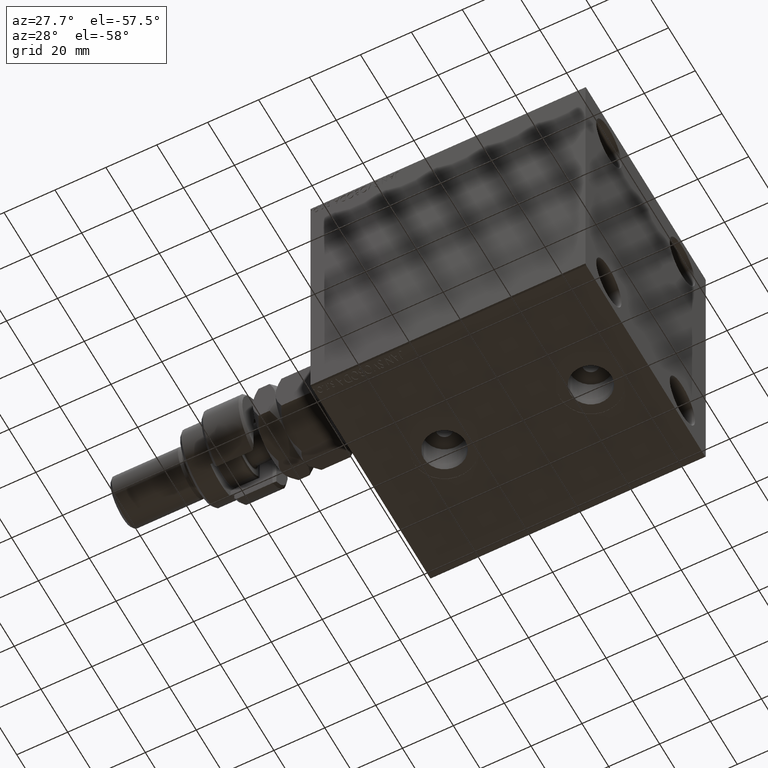
[diagram: clean part render]
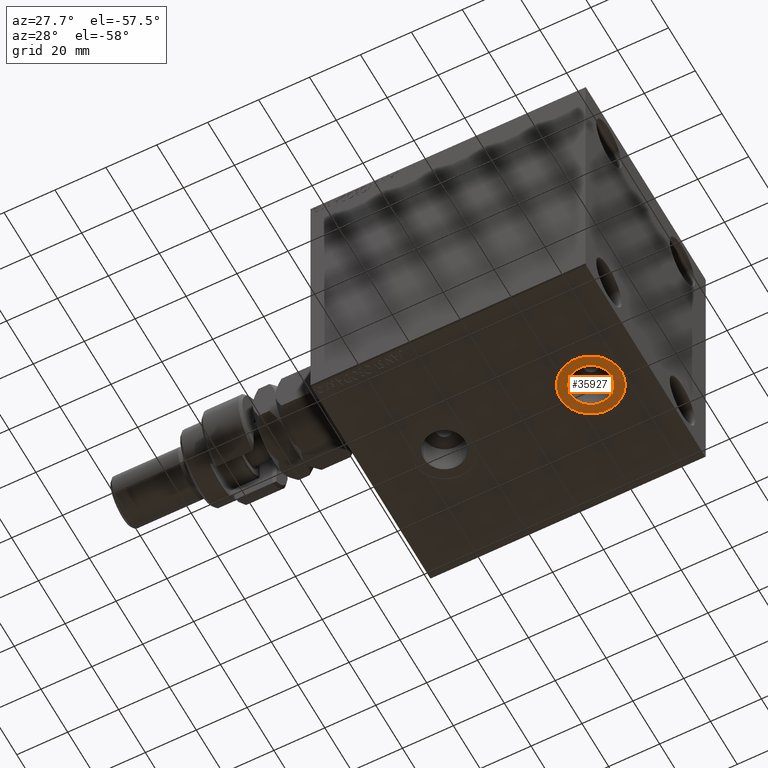
[diagram: same view with one face highlighted and labeled with its STEP entity id]
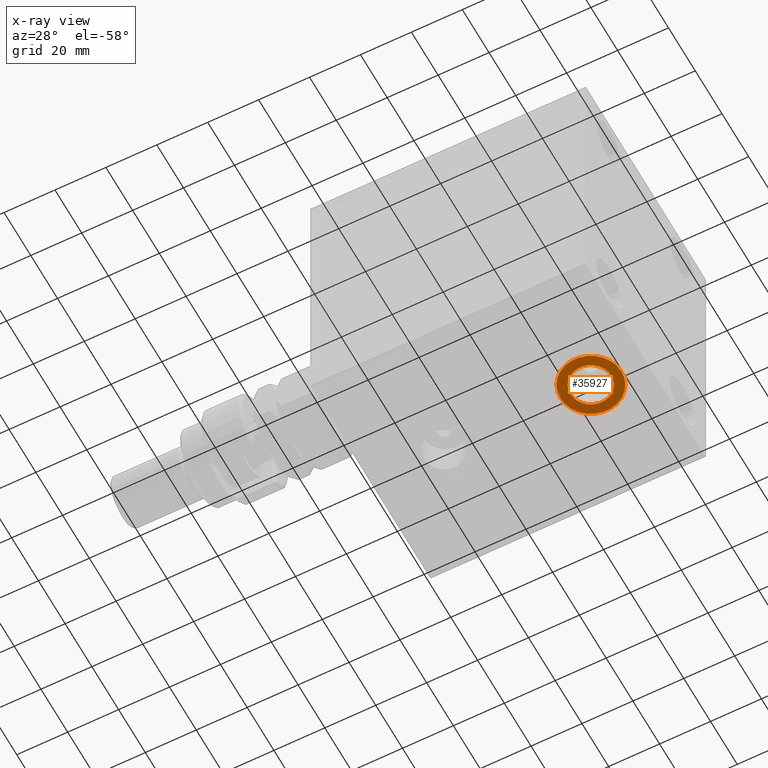
[diagram: x-ray of the same camera — body ghosted, the highlighted face saturated]
A machine part, auxiliary view. The second image highlights one B-rep face of the part: STEP entity #35927.
The next image is the same camera in x-ray: the body ghosted, the highlighted face saturated — about 0% of this face is hidden behind the body in this view.
In plain terms, the highlighted planar face has unit normal (0, 0, -1).
Its self-contained STEP definition (entity closure, byte-faithful):
#333 = CARTESIAN_POINT ( 'NONE',  ( 86.50000000000000000, -1.272749711318452652E-14, -57.40000000000000568 ) ) ;
#3162 = DIRECTION ( 'NONE',  ( 0.000000000000000000, 0.000000000000000000, -1.000000000000000000 ) ) ;
#3731 = DIRECTION ( 'NONE',  ( -1.000000000000000000, 0.000000000000000000, 0.000000000000000000 ) ) ;
#4133 = DIRECTION ( 'NONE',  ( 0.000000000000000000, 0.000000000000000000, -1.000000000000000000 ) ) ;
#4331 = EDGE_CURVE ( 'NONE', #12746, #13390, #4464, .T. ) ;
#4464 = CIRCLE ( 'NONE', #37916, 12.00000000000001066 ) ;
#5375 = EDGE_CURVE ( 'NONE', #13390, #12746, #25537, .T. ) ;
#6314 = ORIENTED_EDGE ( 'NONE', *, *, #32702, .F. ) ;
#9627 = CARTESIAN_POINT ( 'NONE',  ( 86.50000000000000000, -1.272749711318452652E-14, -57.40000000000000568 ) ) ;
#9657 = CARTESIAN_POINT ( 'NONE',  ( 94.58499999999999375, -1.173737017607389215E-14, -57.40000000000000568 ) ) ;
#10071 = ORIENTED_EDGE ( 'NONE', *, *, #15020, .F. ) ;
#11486 = CARTESIAN_POINT ( 'NONE',  ( 86.50000000000000000, -1.272749711318452652E-14, -57.40000000000000568 ) ) ;
#12746 = VERTEX_POINT ( 'NONE', #26720 ) ;
#13269 = DIRECTION ( 'NONE',  ( 0.000000000000000000, 0.000000000000000000, -1.000000000000000000 ) ) ;
#13390 = VERTEX_POINT ( 'NONE', #46774 ) ;
#14127 = CARTESIAN_POINT ( 'NONE',  ( 86.50000000000000000, -1.272749711318452652E-14, -57.40000000000000568 ) ) ;
#14580 = CIRCLE ( 'NONE', #39484, 8.084999999999995524 ) ;
#14909 = DIRECTION ( 'NONE',  ( -1.000000000000000000, 0.000000000000000000, 0.000000000000000000 ) ) ;
#15020 = EDGE_CURVE ( 'NONE', #41111, #46576, #24133, .T. ) ;
#18999 = PLANE ( 'NONE',  #45022 ) ;
#19238 = FACE_OUTER_BOUND ( 'NONE', #22231, .T. ) ;
#21034 = ORIENTED_EDGE ( 'NONE', *, *, #4331, .T. ) ;
#22231 = EDGE_LOOP ( 'NONE', ( #21034, #24846 ) ) ;
#22662 = FACE_BOUND ( 'NONE', #36165, .T. ) ;
#24133 = CIRCLE ( 'NONE', #25674, 8.084999999999995524 ) ;
#24846 = ORIENTED_EDGE ( 'NONE', *, *, #5375, .T. ) ;
#25537 = CIRCLE ( 'NONE', #35613, 12.00000000000001066 ) ;
#25674 = AXIS2_PLACEMENT_3D ( 'NONE', #14127, #3162, #29006 ) ;
#26127 = DIRECTION ( 'NONE',  ( 0.000000000000000000, 0.000000000000000000, -1.000000000000000000 ) ) ;
#26720 = CARTESIAN_POINT ( 'NONE',  ( 74.49999999999998579, -1.272749711318452652E-14, -57.40000000000000568 ) ) ;
#28158 = DIRECTION ( 'NONE',  ( -1.000000000000000000, 0.000000000000000000, 0.000000000000000000 ) ) ;
#29006 = DIRECTION ( 'NONE',  ( -1.000000000000000000, 0.000000000000000000, 0.000000000000000000 ) ) ;
#30615 = CARTESIAN_POINT ( 'NONE',  ( 78.41499999999999204, -1.272749711318452652E-14, -57.40000000000000568 ) ) ;
#32702 = EDGE_CURVE ( 'NONE', #46576, #41111, #14580, .T. ) ;
#33866 = DIRECTION ( 'NONE',  ( -1.000000000000000000, 0.000000000000000000, -0.000000000000000000 ) ) ;
#35613 = AXIS2_PLACEMENT_3D ( 'NONE', #9627, #13269, #28158 ) ;
#35927 = ADVANCED_FACE ( 'NONE', ( #22662, #19238 ), #18999, .T. ) ;
#36165 = EDGE_LOOP ( 'NONE', ( #10071, #6314 ) ) ;
#37374 = DIRECTION ( 'NONE',  ( 0.000000000000000000, 0.000000000000000000, -1.000000000000000000 ) ) ;
#37531 = CARTESIAN_POINT ( 'NONE',  ( 86.50000000000000000, -1.272749711318452652E-14, -57.40000000000000568 ) ) ;
#37916 = AXIS2_PLACEMENT_3D ( 'NONE', #11486, #26127, #14909 ) ;
#39484 = AXIS2_PLACEMENT_3D ( 'NONE', #333, #37374, #3731 ) ;
#41111 = VERTEX_POINT ( 'NONE', #30615 ) ;
#45022 = AXIS2_PLACEMENT_3D ( 'NONE', #37531, #4133, #33866 ) ;
#46576 = VERTEX_POINT ( 'NONE', #9657 ) ;
#46774 = CARTESIAN_POINT ( 'NONE',  ( 98.50000000000000000, -1.125792095420770316E-14, -57.40000000000000568 ) ) ;